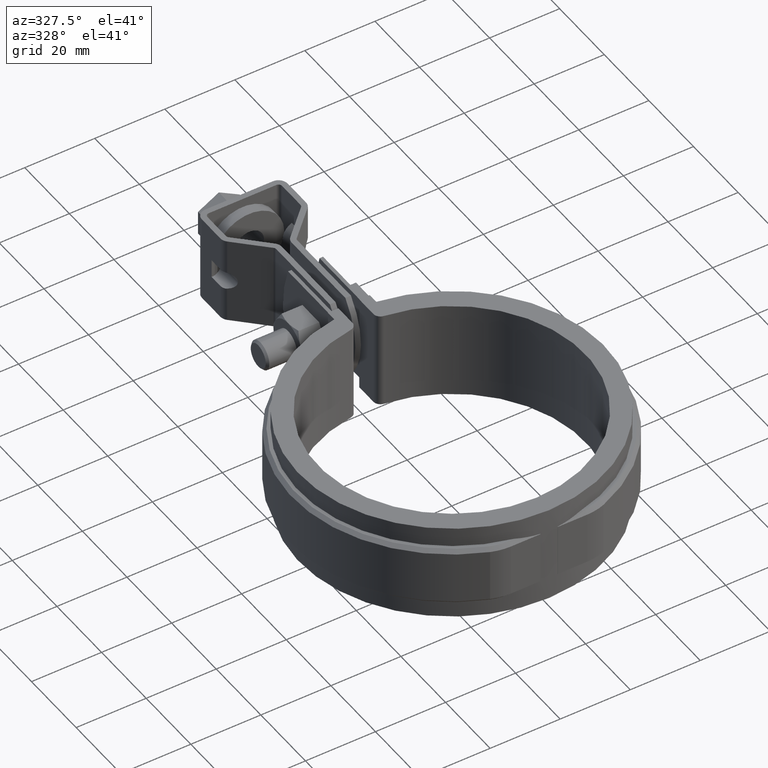
[diagram: clean part render]
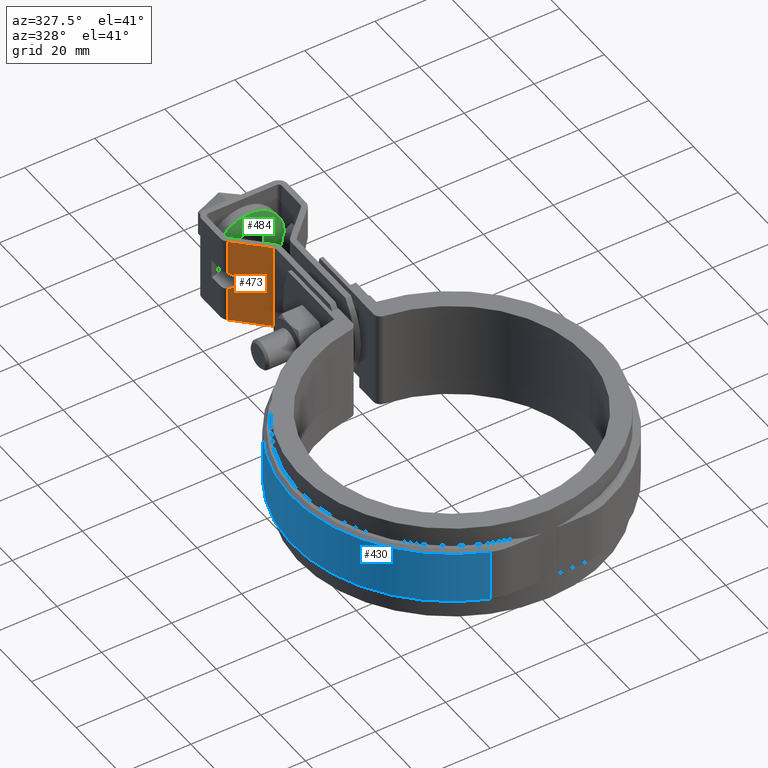
[diagram: same view with three faces highlighted in distinct colors, each labeled with its STEP entity id]
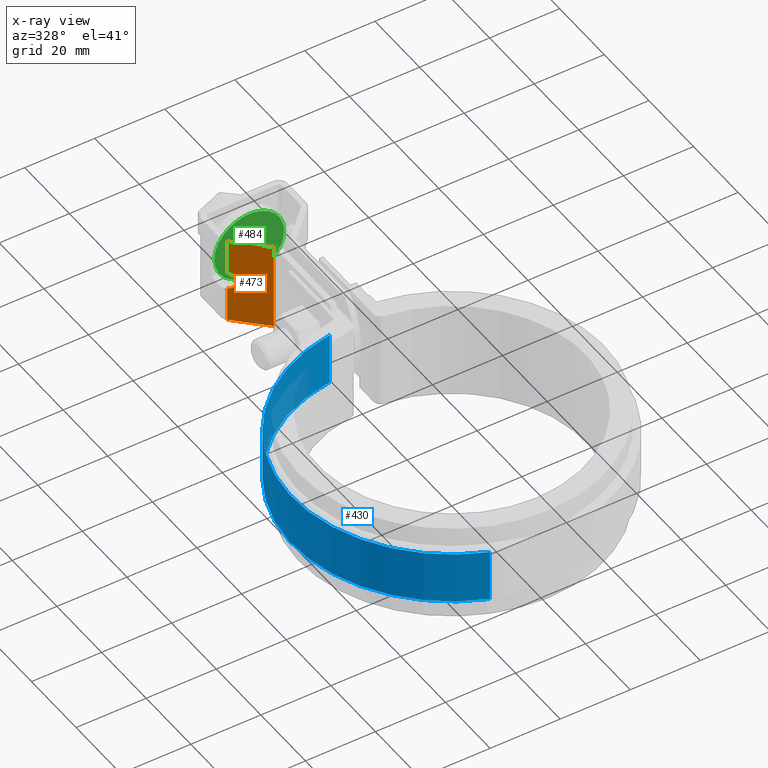
[diagram: x-ray of the same camera — body ghosted, the three highlighted faces saturated]
A machine part, auxiliary view with three faces highlighted in distinct colors.
The next image is the same camera in x-ray (body ghosted, the three faces saturated) — at least one of them is partly hidden behind the body in this view.
Their STEP definitions:

[orange] entity #473 — the highlighted planar face has unit normal (-0.6983, -0.7158, -0).
#473 = ADVANCED_FACE( '', ( #861 ), #862, .T. );
#861 = FACE_OUTER_BOUND( '', #1849, .T. );
#862 = PLANE( '', #1850 );
#1849 = EDGE_LOOP( '', ( #3885, #3886, #3887, #3888, #3889, #3890 ) );
#1850 = AXIS2_PLACEMENT_3D( '', #3891, #3892, #3893 );
#3885 = ORIENTED_EDGE( '', *, *, #4724, .F. );
#3886 = ORIENTED_EDGE( '', *, *, #4679, .T. );
#3887 = ORIENTED_EDGE( '', *, *, #4628, .T. );
#3888 = ORIENTED_EDGE( '', *, *, #4709, .T. );
#3889 = ORIENTED_EDGE( '', *, *, #4699, .F. );
#3890 = ORIENTED_EDGE( '', *, *, #4733, .T. );
#3891 = CARTESIAN_POINT( '', ( -3.90167616446670, 75.2503979413676, 12.5000000000033 ) );
#3892 = DIRECTION( '', ( -0.698323835530503, -0.715781964518503, -4.17384077482085E-014 ) );
#3893 = DIRECTION( '', ( 0.715781964518503, -0.698323835530503, 2.00247913802682E-015 ) );
#4628 = EDGE_CURVE( '', #5452, #5450, #5453, .T. );
#4679 = EDGE_CURVE( '', #5533, #5452, #5536, .T. );
#4699 = EDGE_CURVE( '', #5570, #5571, #5572, .T. );
#4709 = EDGE_CURVE( '', #5450, #5571, #5586, .T. );
#4724 = EDGE_CURVE( '', #5533, #5607, #5608, .T. );
#4733 = EDGE_CURVE( '', #5570, #5607, #5621, .T. );
#5450 = VERTEX_POINT( '', #8239 );
#5452 = VERTEX_POINT( '', #8241 );
#5453 = LINE( '', #8242, #8243 );
#5533 = VERTEX_POINT( '', #8379 );
#5536 = LINE( '', #8383, #8384 );
#5570 = VERTEX_POINT( '', #8437 );
#5571 = VERTEX_POINT( '', #8438 );
#5572 = ELLIPSE( '', #8439, 3.70224472166266, 2.64999999999997 );
#5586 = LINE( '', #8474, #8475 );
#5607 = VERTEX_POINT( '', #8506 );
#5608 = LINE( '', #8507, #8508 );
#5621 = LINE( '', #8525, #8526 );
#8239 = CARTESIAN_POINT( '', ( -11.4656419723765, 82.6298764371052, 12.5000000000032 ) );
#8241 = CARTESIAN_POINT( '', ( -3.30167616446669, 74.6650321147780, 12.5000000000033 ) );
#8242 = CARTESIAN_POINT( '', ( -3.90167616446670, 75.2503979413676, 12.5000000000033 ) );
#8243 = VECTOR( '', #9287, 1000.00000000000 );
#8379 = CARTESIAN_POINT( '', ( -3.30167616446593, 74.6650321147787, -12.4999999999967 ) );
#8383 = CARTESIAN_POINT( '', ( -3.30167616446669, 74.6650321147780, 12.5000000000033 ) );
#8384 = VECTOR( '', #9364, 1000.00000000000 );
#8437 = CARTESIAN_POINT( '', ( -11.4656419723760, 82.6298764371056, -2.53126104629499 ) );
#8438 = CARTESIAN_POINT( '', ( -11.4656419723762, 82.6298764371054, 2.53126104630148 ) );
#8439 = AXIS2_PLACEMENT_3D( '', #9398, #9399, #9400 );
#8474 = CARTESIAN_POINT( '', ( -11.4656419723765, 82.6298764371052, 12.5000000000032 ) );
#8475 = VECTOR( '', #9412, 1000.00000000000 );
#8506 = CARTESIAN_POINT( '', ( -11.4656419723757, 82.6298764371059, -12.4999999999968 ) );
#8507 = CARTESIAN_POINT( '', ( -3.90167616446594, 75.2503979413683, -12.4999999999967 ) );
#8508 = VECTOR( '', #9435, 1000.00000000000 );
#8525 = CARTESIAN_POINT( '', ( -11.4656419723765, 82.6298764371052, 12.5000000000032 ) );
#8526 = VECTOR( '', #9452, 1000.00000000000 );
#9287 = DIRECTION( '', ( -0.715781964518503, 0.698323835530503, -2.00247913802682E-015 ) );
#9364 = DIRECTION( '', ( -3.05190331212981E-014, -2.85369574741963E-014, 1.00000000000000 ) );
#9398 = CARTESIAN_POINT( '', ( -12.2499999999967, 83.3951037457394, 3.24740234702858E-012 ) );
#9399 = DIRECTION( '', ( -0.698323835530501, -0.715781964518505, -4.17033053004426E-014 ) );
#9400 = DIRECTION( '', ( -0.715781964518505, 0.698323835530501, -1.96649912740303E-015 ) );
#9412 = DIRECTION( '', ( 3.05802634389892E-014, 2.84772205816503E-014, -1.00000000000000 ) );
#9435 = DIRECTION( '', ( -0.715781964518503, 0.698323835530503, -2.00247913802682E-015 ) );
#9452 = DIRECTION( '', ( 3.05802634389892E-014, 2.84772205816503E-014, -1.00000000000000 ) );

[blue] entity #430 — the highlighted cylindrical surface (partial cylindrical patch) has radius 45.65 mm, axis along (0, 0, 1).
#430 = ADVANCED_FACE( '', ( #768 ), #769, .T. );
#768 = FACE_OUTER_BOUND( '', #1756, .T. );
#769 = CYLINDRICAL_SURFACE( '', #1757, 45.6500000000000 );
#1756 = EDGE_LOOP( '', ( #3497, #3498, #3499, #3500 ) );
#1757 = AXIS2_PLACEMENT_3D( '', #3501, #3502, #3503 );
#3497 = ORIENTED_EDGE( '', *, *, #4523, .T. );
#3498 = ORIENTED_EDGE( '', *, *, #4546, .T. );
#3499 = ORIENTED_EDGE( '', *, *, #4602, .F. );
#3500 = ORIENTED_EDGE( '', *, *, #4532, .T. );
#3501 = CARTESIAN_POINT( '', ( -3.46944695195361E-015, 3.46944695195361E-014, 8.50000000000000 ) );
#3502 = DIRECTION( '', ( 0.000000000000000, 0.000000000000000, 1.00000000000000 ) );
#3503 = DIRECTION( '', ( 0.109529025191676, -0.993983597772398, 0.000000000000000 ) );
#4523 = EDGE_CURVE( '', #5287, #5288, #5289, .T. );
#4532 = EDGE_CURVE( '', #5304, #5287, #5305, .F. );
#4546 = EDGE_CURVE( '', #5288, #5321, #5327, .T. );
#4602 = EDGE_CURVE( '', #5304, #5321, #5401, .T. );
#5287 = VERTEX_POINT( '', #7935 );
#5288 = VERTEX_POINT( '', #7936 );
#5289 = LINE( '', #7937, #7938 );
#5304 = VERTEX_POINT( '', #7965 );
#5305 = CIRCLE( '', #7966, 45.6500000000000 );
#5321 = VERTEX_POINT( '', #7987 );
#5327 = CIRCLE( '', #7994, 45.6500000000000 );
#5401 = LINE( '', #8175, #8176 );
#7935 = CARTESIAN_POINT( '', ( -6.00000000000000, 45.2539777257204, 7.50000000000000 ) );
#7936 = CARTESIAN_POINT( '', ( -6.00000000000000, 45.2539777257204, -7.49999999999999 ) );
#7937 = CARTESIAN_POINT( '', ( -6.00000000000000, 45.2539777257204, 8.50000000000000 ) );
#7938 = VECTOR( '', #9113, 1000.00000000000 );
#7965 = CARTESIAN_POINT( '', ( -16.2200671388275, -42.6712071778140, 7.50000000000000 ) );
#7966 = AXIS2_PLACEMENT_3D( '', #9120, #9121, #9122 );
#7987 = CARTESIAN_POINT( '', ( -16.2200671388275, -42.6712071778140, -7.49999999999999 ) );
#7994 = AXIS2_PLACEMENT_3D( '', #9150, #9151, #9152 );
#8175 = CARTESIAN_POINT( '', ( -16.2200671388275, -42.6712071778140, 8.50000000000000 ) );
#8176 = VECTOR( '', #9239, 1000.00000000000 );
#9113 = DIRECTION( '', ( 0.000000000000000, 0.000000000000000, -1.00000000000000 ) );
#9120 = CARTESIAN_POINT( '', ( -3.46944695195361E-015, 3.46944695195361E-014, 7.50000000000000 ) );
#9121 = DIRECTION( '', ( 0.000000000000000, 0.000000000000000, 1.00000000000000 ) );
#9122 = DIRECTION( '', ( 1.00000000000000, 0.000000000000000, 0.000000000000000 ) );
#9150 = CARTESIAN_POINT( '', ( -3.46944695195361E-015, 3.46944695195361E-014, -7.50000000000000 ) );
#9151 = DIRECTION( '', ( 0.000000000000000, 0.000000000000000, 1.00000000000000 ) );
#9152 = DIRECTION( '', ( 1.00000000000000, 0.000000000000000, 0.000000000000000 ) );
#9239 = DIRECTION( '', ( 0.000000000000000, 0.000000000000000, -1.00000000000000 ) );

[green] entity #484 — the highlighted planar face has unit normal (0, 1, 0).
#484 = ADVANCED_FACE( '', ( #886, #887 ), #888, .F. );
#886 = FACE_BOUND( '', #1874, .T. );
#887 = FACE_OUTER_BOUND( '', #1875, .T. );
#888 = PLANE( '', #1876 );
#1874 = EDGE_LOOP( '', ( #3968 ) );
#1875 = EDGE_LOOP( '', ( #3969 ) );
#1876 = AXIS2_PLACEMENT_3D( '', #3970, #3971, #3972 );
#3968 = ORIENTED_EDGE( '', *, *, #4752, .T. );
#3969 = ORIENTED_EDGE( '', *, *, #4753, .F. );
#3970 = CARTESIAN_POINT( '', ( 3.22647596306892E-012, 90.7951037457395, 3.83026943495679E-012 ) );
#3971 = DIRECTION( '', ( 2.75928290874320E-015, 1.00000000000000, 2.84772205816504E-014 ) );
#3972 = DIRECTION( '', ( 1.00000000000000, -2.75928290874407E-015, 3.05190331212980E-014 ) );
#4752 = EDGE_CURVE( '', #5652, #5652, #5653, .T. );
#4753 = EDGE_CURVE( '', #5654, #5654, #5655, .T. );
#5652 = VERTEX_POINT( '', #8573 );
#5653 = CIRCLE( '', #8574, 4.25000000000000 );
#5654 = VERTEX_POINT( '', #8575 );
#5655 = CIRCLE( '', #8576, 10.0000000000000 );
#8573 = CARTESIAN_POINT( '', ( 4.25000000000322, 90.7951037457395, 3.95997532572231E-012 ) );
#8574 = AXIS2_PLACEMENT_3D( '', #9475, #9476, #9477 );
#8575 = CARTESIAN_POINT( '', ( 10.0000000000032, 90.7951037457395, 4.13545976616977E-012 ) );
#8576 = AXIS2_PLACEMENT_3D( '', #9478, #9479, #9480 );
#9475 = CARTESIAN_POINT( '', ( 3.22430755872395E-012, 90.7951037457395, 3.83026943495679E-012 ) );
#9476 = DIRECTION( '', ( 2.75928290874320E-015, 1.00000000000000, 2.84772205816504E-014 ) );
#9477 = DIRECTION( '', ( 1.00000000000000, -2.75928290874407E-015, 3.05190331212980E-014 ) );
#9478 = CARTESIAN_POINT( '', ( 3.22647596306892E-012, 90.7951037457395, 3.83026943495679E-012 ) );
#9479 = DIRECTION( '', ( 2.75928290874320E-015, 1.00000000000000, 2.84772205816504E-014 ) );
#9480 = DIRECTION( '', ( 1.00000000000000, -2.75928290874407E-015, 3.05190331212980E-014 ) );